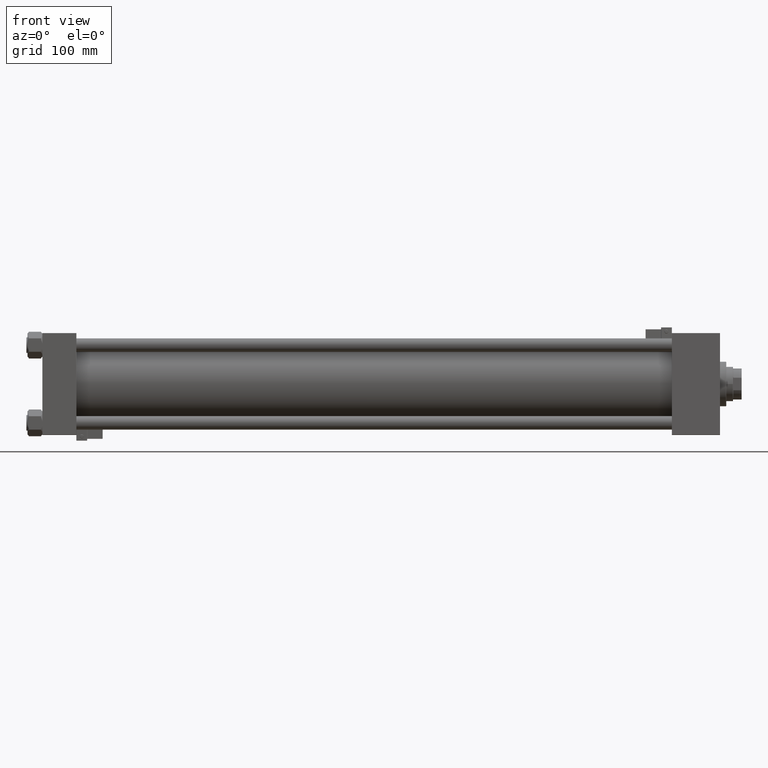
[diagram: clean part render]
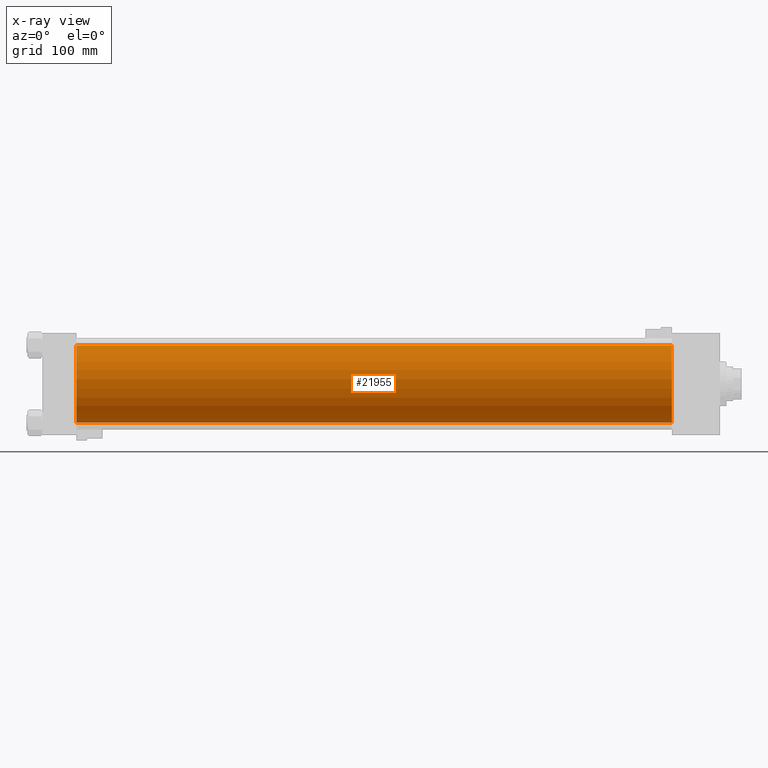
[diagram: x-ray — body ghosted, one internal face saturated and labeled with its STEP entity id]
A machine part, front view, then the same camera in x-ray: the body is ghosted and one INTERNAL B-rep face — a face not visible from any outside direction — is saturated and labeled: STEP entity #21955.
In plain terms, the highlighted cylindrical surface (partial cylindrical patch) has radius 62.5 mm, axis along (-1, -0, -0).
Its self-contained STEP definition (entity closure, byte-faithful):
#957 = VECTOR ( 'NONE', #23525, 1000.000000000000000 ) ;
#1352 = VERTEX_POINT ( 'NONE', #47613 ) ;
#2333 = EDGE_CURVE ( 'NONE', #19396, #38692, #5910, .T. ) ;
#5910 = LINE ( 'NONE', #10195, #18867 ) ;
#10195 = CARTESIAN_POINT ( 'NONE',  ( 1018.999999999999886, 5.051957280705747162E-15, -62.50000000000000000 ) ) ;
#12700 = CARTESIAN_POINT ( 'NONE',  ( 1018.999999999999886, 5.051957280705747162E-15, -62.50000000000000000 ) ) ;
#13385 = FACE_OUTER_BOUND ( 'NONE', #43978, .T. ) ;
#13960 = EDGE_CURVE ( 'NONE', #49400, #19396, #40536, .T. ) ;
#14677 = DIRECTION ( 'NONE',  ( 0.000000000000000000, 0.000000000000000000, -1.000000000000000000 ) ) ;
#15744 = LINE ( 'NONE', #40879, #957 ) ;
#16894 = EDGE_CURVE ( 'NONE', #49400, #1352, #15744, .T. ) ;
#17668 = ORIENTED_EDGE ( 'NONE', *, *, #2333, .T. ) ;
#18867 = VECTOR ( 'NONE', #46349, 1000.000000000000000 ) ;
#19396 = VERTEX_POINT ( 'NONE', #12700 ) ;
#21785 = ORIENTED_EDGE ( 'NONE', *, *, #13960, .T. ) ;
#21955 = ADVANCED_FACE ( 'NONE', ( #13385 ), #23552, .F. ) ;
#23525 = DIRECTION ( 'NONE',  ( -1.000000000000000000, -0.000000000000000000, -0.000000000000000000 ) ) ;
#23552 = CYLINDRICAL_SURFACE ( 'NONE', #44706, 62.50000000000000000 ) ;
#24258 = EDGE_CURVE ( 'NONE', #1352, #38692, #48279, .T. ) ;
#24392 = CARTESIAN_POINT ( 'NONE',  ( 55.00000000000000000, -2.602085213965210642E-15, 0.000000000000000000 ) ) ;
#26275 = ORIENTED_EDGE ( 'NONE', *, *, #24258, .F. ) ;
#26822 = CARTESIAN_POINT ( 'NONE',  ( 55.00000000000000000, 5.051957280705747162E-15, -62.50000000000000000 ) ) ;
#29419 = AXIS2_PLACEMENT_3D ( 'NONE', #24392, #49809, #37229 ) ;
#33185 = CARTESIAN_POINT ( 'NONE',  ( 1018.999999999999886, -2.602085213965210642E-15, 62.50000000000000000 ) ) ;
#37229 = DIRECTION ( 'NONE',  ( 0.000000000000000000, 0.000000000000000000, -1.000000000000000000 ) ) ;
#37972 = AXIS2_PLACEMENT_3D ( 'NONE', #40091, #44120, #14677 ) ;
#38692 = VERTEX_POINT ( 'NONE', #26822 ) ;
#40091 = CARTESIAN_POINT ( 'NONE',  ( 1018.999999999999886, -2.602085213965210642E-15, 0.000000000000000000 ) ) ;
#40536 = CIRCLE ( 'NONE', #37972, 62.50000000000000000 ) ;
#40879 = CARTESIAN_POINT ( 'NONE',  ( 1018.999999999999886, -2.602085213965210642E-15, 62.50000000000000000 ) ) ;
#43352 = CARTESIAN_POINT ( 'NONE',  ( 1018.999999999999886, -2.602085213965210642E-15, 0.000000000000000000 ) ) ;
#43978 = EDGE_LOOP ( 'NONE', ( #21785, #17668, #26275, #46387 ) ) ;
#44120 = DIRECTION ( 'NONE',  ( 1.000000000000000000, 0.000000000000000000, 0.000000000000000000 ) ) ;
#44706 = AXIS2_PLACEMENT_3D ( 'NONE', #43352, #51666, #51935 ) ;
#46349 = DIRECTION ( 'NONE',  ( -1.000000000000000000, -0.000000000000000000, -0.000000000000000000 ) ) ;
#46387 = ORIENTED_EDGE ( 'NONE', *, *, #16894, .F. ) ;
#47613 = CARTESIAN_POINT ( 'NONE',  ( 55.00000000000000000, -2.602085213965210642E-15, 62.50000000000000000 ) ) ;
#48279 = CIRCLE ( 'NONE', #29419, 62.50000000000000000 ) ;
#49400 = VERTEX_POINT ( 'NONE', #33185 ) ;
#49809 = DIRECTION ( 'NONE',  ( 1.000000000000000000, 0.000000000000000000, 0.000000000000000000 ) ) ;
#51666 = DIRECTION ( 'NONE',  ( -1.000000000000000000, -0.000000000000000000, -0.000000000000000000 ) ) ;
#51935 = DIRECTION ( 'NONE',  ( 0.000000000000000000, 0.000000000000000000, 1.000000000000000000 ) ) ;